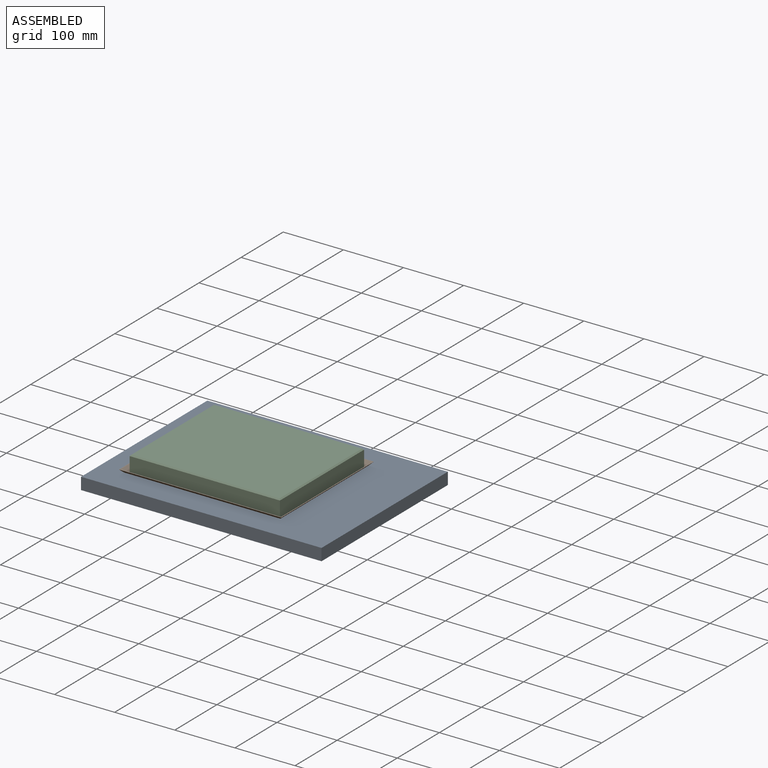
[diagram: assembled view]
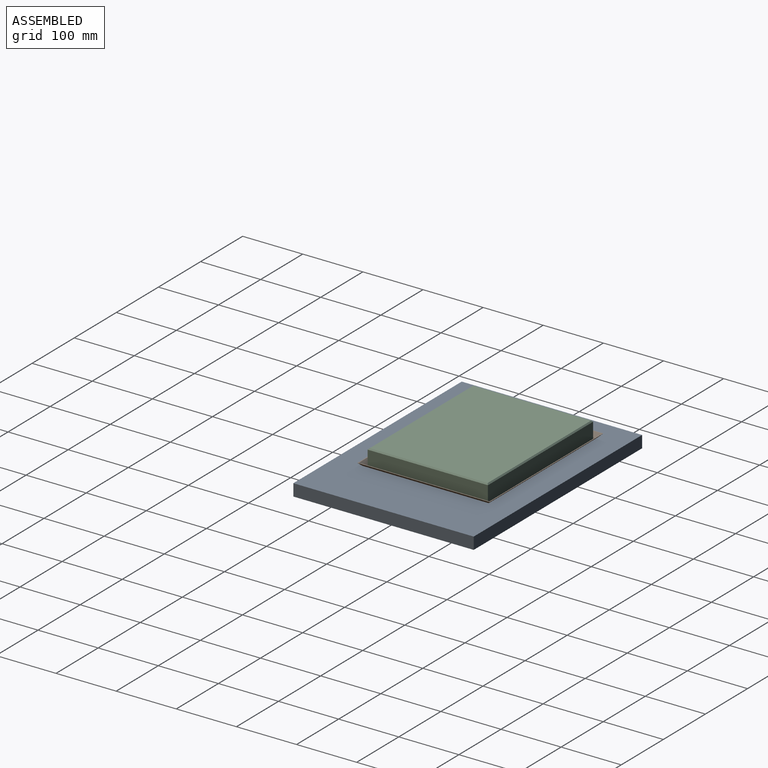
[diagram: assembled view, second angle]
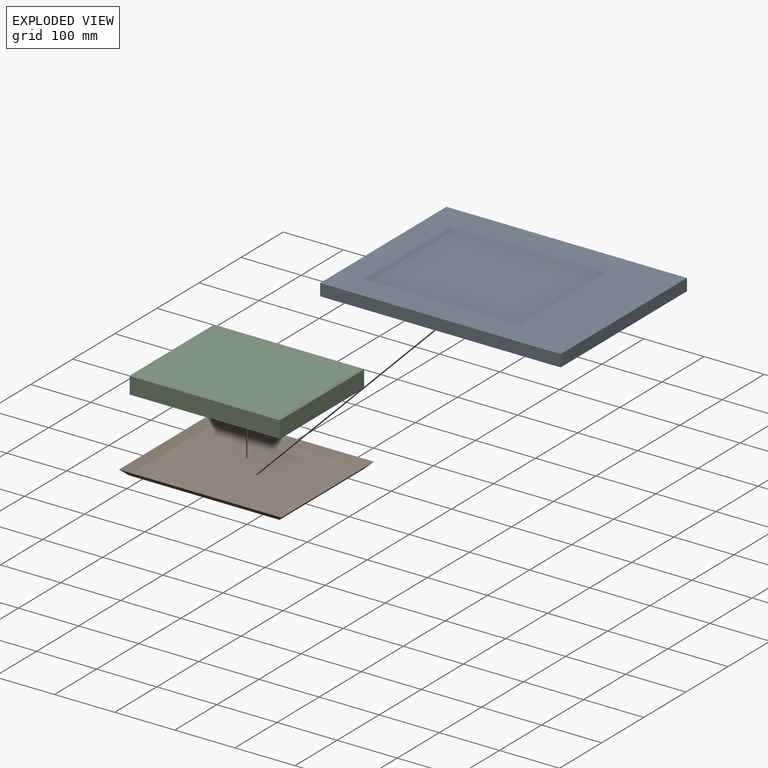
[diagram: exploded view]
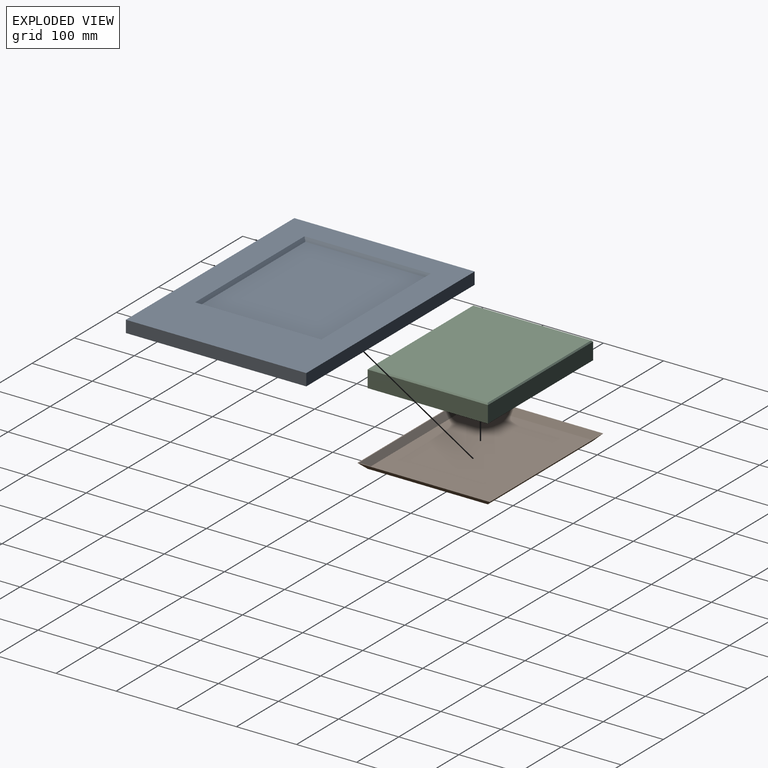
[diagram: exploded view, second angle]
ASSEMBLY  parts=3 mates=4
PART A: 11 faces, bbox 400x300x20 mm
  f0: plane 400x300mm, normal (0,0,1), area 65400mm2, adj f1,f2,f3,f4,f6,f7,f8,f9
  f1: plane 300x20mm, normal (1,0,0), area 6000mm2, adj f0,f2,f4,f5
  f2: plane 400x20mm, normal (0,1,0), area 8000mm2, adj f0,f1,f3,f5
  f3: plane 300x20mm, normal (-1,0,0), area 6000mm2, adj f0,f2,f4,f5
  f4: plane 400x20mm, normal (0,-1,0), area 8000mm2, adj f0,f1,f3,f5
  f5: plane 400x300mm, normal (0,0,-1), area 120000mm2, adj f1,f2,f3,f4
  f6: plane 260x5mm, normal (0,-0.71,0.71), area 1803.1mm2, adj f0,f7,f9,f10
  f7: plane 210x5mm, normal (0.71,0,0.71), area 1449.6mm2, adj f0,f6,f8,f10
  f8: plane 260x5mm, normal (0,0.71,0.71), area 1803.1mm2, adj f0,f7,f9,f10
  f9: plane 210x5mm, normal (-0.71,0,0.71), area 1449.6mm2, adj f0,f6,f8,f10
  f10: plane 250x200mm, normal (0,0,1), area 50000mm2, adj f6,f7,f8,f9
PART B: 11 faces, bbox 270x220x10 mm
  f0: plane 270x220mm, normal (0,0,1), area 1377.9mm2, adj f1,f2,f3,f4,f6,f7,f8,f9
  f1: plane 220x10mm, normal (0.71,0,-0.71), area 2969.8mm2, adj f0,f2,f4,f5
  f2: plane 270x10mm, normal (0,0.71,-0.71), area 3677mm2, adj f0,f1,f3,f5
  f3: plane 220x10mm, normal (-0.71,0,-0.71), area 2969.8mm2, adj f0,f2,f4,f5
  f4: plane 270x10mm, normal (0,-0.71,-0.71), area 3677mm2, adj f0,f1,f3,f5
  f5: plane 250x200mm, normal (0,0,-1), area 50000mm2, adj f1,f2,f3,f4
  f6: plane 217.17x9mm, normal (-0.71,0,0.71), area 2649.6mm2, adj f0,f7,f9,f10
  f7: plane 267.17x9mm, normal (0,-0.71,0.71), area 3286mm2, adj f0,f6,f8,f10
  f8: plane 217.17x9mm, normal (0.71,0,0.71), area 2649.6mm2, adj f0,f7,f9,f10
  f9: plane 267.17x9mm, normal (0,0.71,0.71), area 3286mm2, adj f0,f6,f8,f10
  f10: plane 249.17x199.17mm, normal (0,0,1), area 49627.9mm2, adj f6,f7,f8,f9
PART C: 10 faces, bbox 250x200x30 mm
  f0: plane 200x28mm, normal (1,0,0), area 5600mm2, adj f1,f3,f5,f6
  f1: plane 250x28mm, normal (0,1,0), area 7000mm2, adj f0,f2,f5,f7
  f2: plane 200x28mm, normal (-1,0,0), area 5600mm2, adj f1,f3,f5,f9
  f3: plane 250x28mm, normal (0,-1,0), area 7000mm2, adj f0,f2,f5,f8
  f4: plane 246x196mm, normal (0,0,1), area 48216mm2, adj f6,f7,f8,f9
  f5: plane 250x200mm, normal (0,0,-1), area 50000mm2, adj f0,f1,f2,f3
  f6: plane 200x2mm, normal (0.71,0,0.71), area 560mm2, adj f0,f4,f7,f8
  f7: plane 250x2mm, normal (0,0.71,0.71), area 701.4mm2, adj f1,f4,f6,f9
  f8: plane 250x2mm, normal (0,-0.71,0.71), area 701.4mm2, adj f3,f4,f6,f9
  f9: plane 200x2mm, normal (-0.71,0,0.71), area 560mm2, adj f2,f4,f7,f8
PLACE A t=(-39.05,-2.74,-223.37)mm
PLACE B t=(-69.05,-2.74,-208.37)mm
PLACE C t=(-68.63,-2.32,-207.37)mm
MATE planar B.f3 <-> A.f7  axis (-0.71,0,-0.71) through (-199.13,-2.74,-203.29)mm
MATE fastened C.f5 <-> B.f10  axis (0,0,1) through (-193.63,-102.32,-207.37)mm
MATE planar C.f5 <-> B.f10  axis (0,0,-1) through (-68.63,-2.32,-207.37)mm
MATE planar B.f5 <-> A.f10  axis (0,0,-1) through (55.95,-102.74,-208.37)mm
